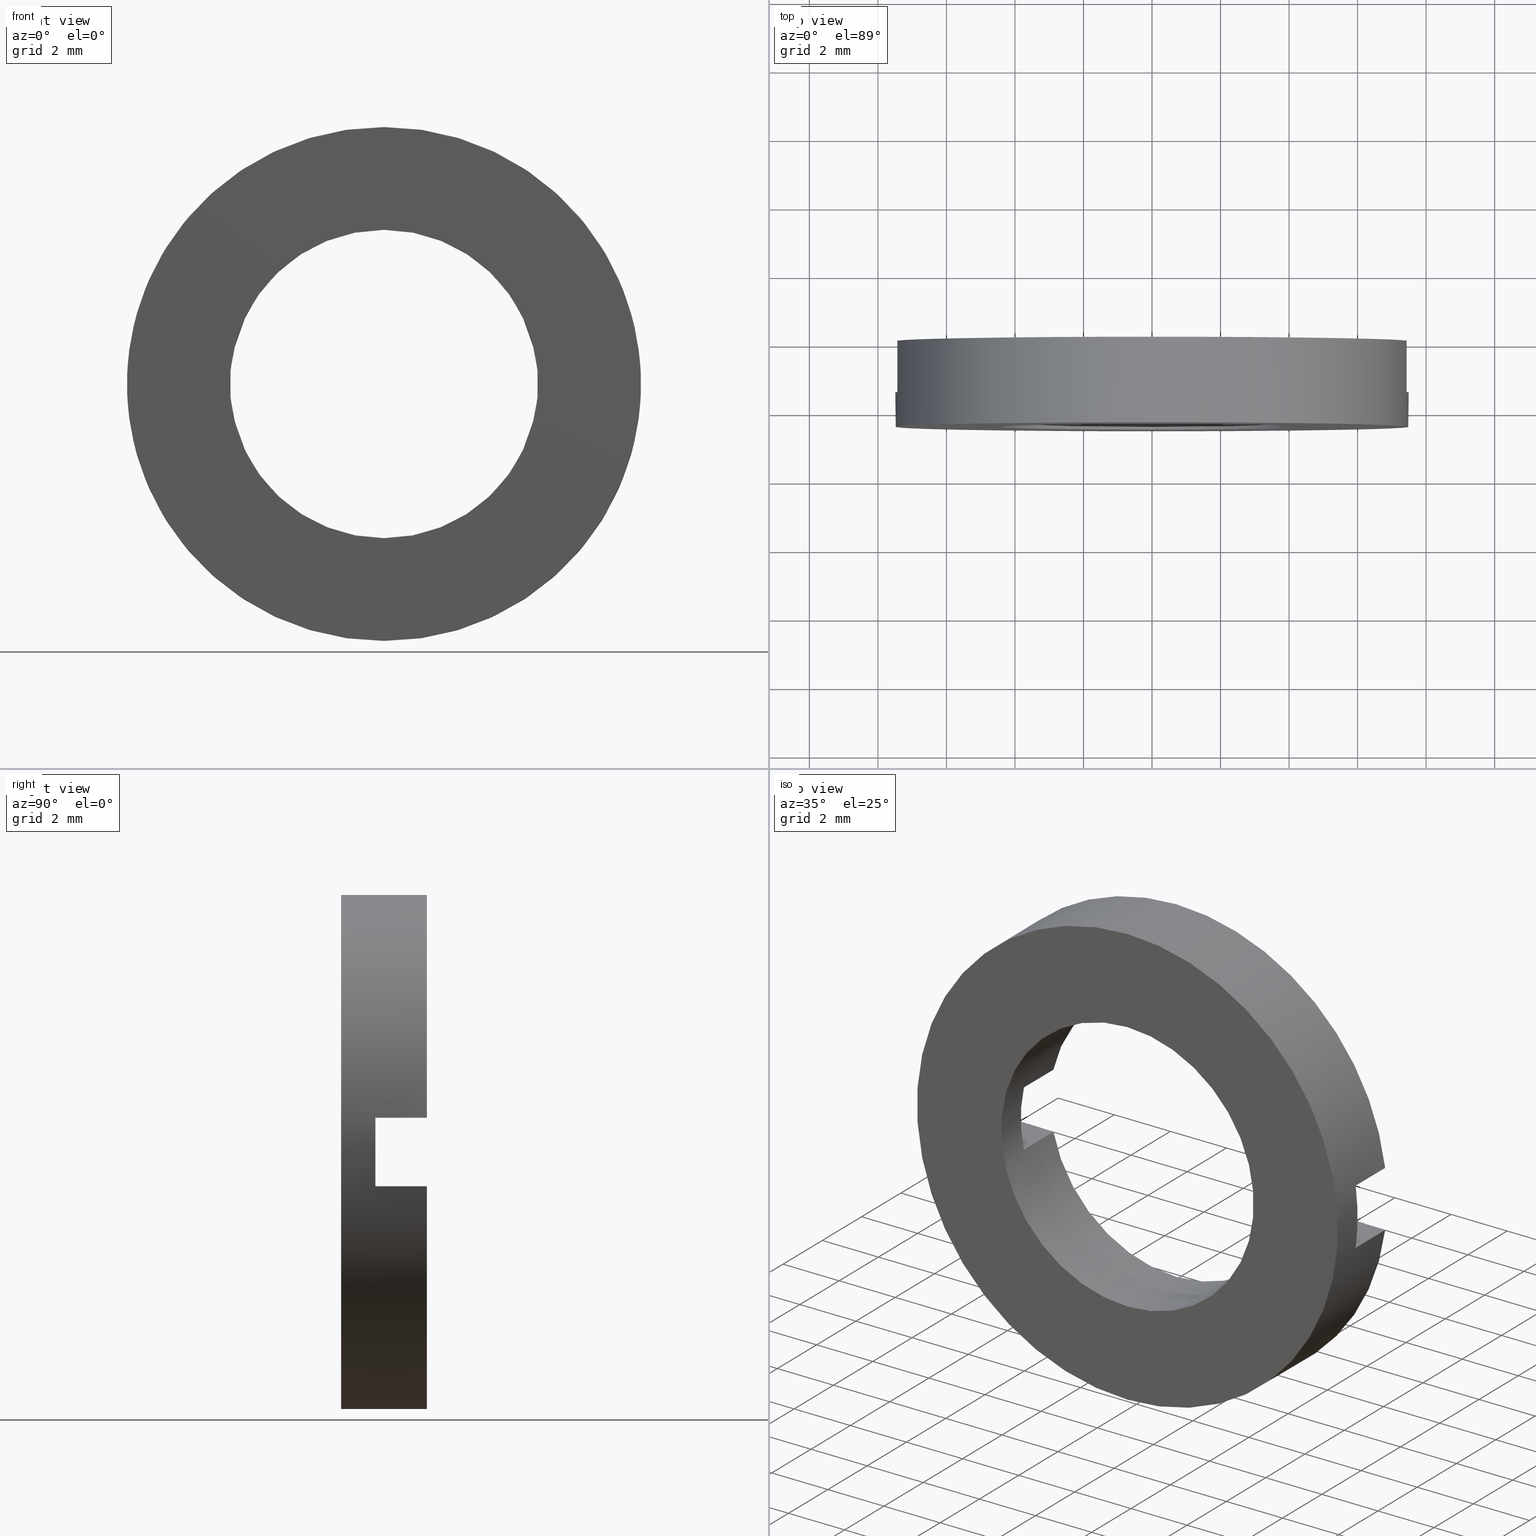
[diagram: canonical four-view strip — front | top / right | iso, engineering-drawing reading convention]
A machine part, canonical four-view strip (front | top / right | iso — engineering-drawing reading convention). The complete STEP part file that produces these views, byte-faithful:
ISO-10303-21;
HEADER;
FILE_DESCRIPTION (( 'STEP AP203' ),
    '1' );
FILE_NAME ('514015.STEP',
    '2019-09-25T08:50:07',
    ( '' ),
    ( '' ),
    'SwSTEP 2.0',
    'SolidWorks 2016',
    '' );
FILE_SCHEMA (( 'CONFIG_CONTROL_DESIGN' ));
ENDSEC;

DATA;
#1 = CARTESIAN_POINT ( 'NONE',  ( 7.433034373659259200, 56.26084262701361600, 1.000000000000000000 ) ) ;
#2 = VERTEX_POINT ( 'NONE', #114 ) ;
#3 = LOCAL_TIME ( 16, 50, 7.000000000000000000, #239 ) ;
#4 = SECURITY_CLASSIFICATION ( '', '', #118 ) ;
#5 = CARTESIAN_POINT ( 'NONE',  ( 4.387482193696067500, -1.964249787179434000, 0.9999999999999995600 ) ) ;
#6 = AXIS2_PLACEMENT_3D ( 'NONE', #446, #85, #314 ) ;
#7 = CARTESIAN_POINT ( 'NONE',  ( 0.0000000000000000000, -1.964249787179434000, 7.500000000000007100 ) ) ;
#8 = VERTEX_POINT ( 'NONE', #528 ) ;
#9 = CALENDAR_DATE ( 2019, 25, 9 ) ;
#10 = EDGE_CURVE ( 'NONE', #89, #326, #40, .T. ) ;
#11 = VERTEX_POINT ( 'NONE', #164 ) ;
#12 = FACE_OUTER_BOUND ( 'NONE', #540, .T. ) ;
#13 = ADVANCED_FACE ( 'NONE', ( #442 ), #574, .T. ) ;
#14 = CC_DESIGN_DATE_AND_TIME_ASSIGNMENT ( #412, #32, ( #4 ) ) ;
#15 = DIRECTION ( 'NONE',  ( 1.000000000000000000, 0.0000000000000000000, 0.0000000000000000000 ) ) ;
#16 = DIRECTION ( 'NONE',  ( -0.0000000000000000000, 1.000000000000000000, -0.0000000000000000000 ) ) ;
#17 = ORIENTED_EDGE ( 'NONE', *, *, #348, .F. ) ;
#18 = DIRECTION ( 'NONE',  ( -1.000000000000000000, -0.0000000000000000000, -0.0000000000000000000 ) ) ;
#19 = CC_DESIGN_PERSON_AND_ORGANIZATION_ASSIGNMENT ( #468, #216, ( #370 ) ) ;
#20 = CARTESIAN_POINT ( 'NONE',  ( 7.433034373659258300, -3.464249787179428400, -0.9999999999999995600 ) ) ;
#21 = CARTESIAN_POINT ( 'NONE',  ( 7.433034373659247700, -1.964249787179430900, -1.000000000000000000 ) ) ;
#22 = CARTESIAN_POINT ( 'NONE',  ( 7.433034373659258300, -3.464249787179428400, 0.9999999999999995600 ) ) ;
#23 = ORIENTED_EDGE ( 'NONE', *, *, #304, .F. ) ;
#24 = CALENDAR_DATE ( 2019, 25, 9 ) ;
#25 = DIRECTION ( 'NONE',  ( -0.0000000000000000000, 1.000000000000000000, -0.0000000000000000000 ) ) ;
#26 = FACE_OUTER_BOUND ( 'NONE', #134, .T. ) ;
#27 = APPROVAL_STATUS ( 'not_yet_approved' ) ;
#28 = EDGE_CURVE ( 'NONE', #11, #193, #283, .T. ) ;
#29 = DIRECTION ( 'NONE',  ( 1.000000000000000000, 0.0000000000000000000, 0.0000000000000000000 ) ) ;
#30 = DIRECTION ( 'NONE',  ( -0.0000000000000000000, 1.000000000000000000, -0.0000000000000000000 ) ) ;
#31 = EDGE_CURVE ( 'NONE', #481, #2, #159, .T. ) ;
#32 = DATE_TIME_ROLE ( 'classification_date' ) ;
#33 = APPROVAL_DATE_TIME ( #392, #280 ) ;
#34 = EDGE_LOOP ( 'NONE', ( #435, #162, #318, #334, #581, #429, #141, #82 ) ) ;
#35 = APPROVAL_PERSON_ORGANIZATION ( #473, #406, #168 ) ;
#36 = APPROVAL_ROLE ( '' ) ;
#37 = PRODUCT_RELATED_PRODUCT_CATEGORY ( 'detail', '', ( #514 ) ) ;
#38 = DIRECTION ( 'NONE',  ( 0.0000000000000000000, 0.0000000000000000000, 1.000000000000000000 ) ) ;
#39 = AXIS2_PLACEMENT_3D ( 'NONE', #365, #49, #279 ) ;
#40 = LINE ( 'NONE', #259, #414 ) ;
#41 = APPROVAL_PERSON_ORGANIZATION ( #284, #508, #36 ) ;
#42 = ORIENTED_EDGE ( 'NONE', *, *, #356, .T. ) ;
#43 = LINE ( 'NONE', #116, #241 ) ;
#44 = CC_DESIGN_DATE_AND_TIME_ASSIGNMENT ( #291, #71, ( #84 ) ) ;
#45 = DIRECTION ( 'NONE',  ( 0.0000000000000000000, -1.000000000000000000, 0.0000000000000000000 ) ) ;
#46 = ORIENTED_EDGE ( 'NONE', *, *, #61, .F. ) ;
#47 = FACE_OUTER_BOUND ( 'NONE', #34, .T. ) ;
#48 = PRODUCT_DEFINITION_FORMATION_WITH_SPECIFIED_SOURCE ( '�κ�', '', #514, .NOT_KNOWN. ) ;
#49 = DIRECTION ( 'NONE',  ( -0.0000000000000000000, 1.000000000000000000, -0.0000000000000000000 ) ) ;
#50 = COORDINATED_UNIVERSAL_TIME_OFFSET ( 8, 0, .AHEAD. ) ;
#51 = EDGE_LOOP ( 'NONE', ( #472, #267, #538, #462, #66, #351, #221, #186 ) ) ;
#52 = ADVANCED_FACE ( 'NONE', ( #105 ), #325, .F. ) ;
#53 = APPROVAL_DATE_TIME ( #300, #495 ) ;
#54 = ORIENTED_EDGE ( 'NONE', *, *, #453, .T. ) ;
#55 = FACE_OUTER_BOUND ( 'NONE', #550, .T. ) ;
#56 = DIRECTION ( 'NONE',  ( 0.0000000000000000000, 0.0000000000000000000, 1.000000000000000000 ) ) ;
#57 = AXIS2_PLACEMENT_3D ( 'NONE', #245, #563, #564 ) ;
#58 = CARTESIAN_POINT ( 'NONE',  ( -26.85254027261461800, -3.464249787179431100, -1.000000000000000000 ) ) ;
#59 = COORDINATED_UNIVERSAL_TIME_OFFSET ( 8, 0, .AHEAD. ) ;
#60 = LINE ( 'NONE', #69, #255 ) ;
#61 = EDGE_CURVE ( 'NONE', #193, #331, #136, .T. ) ;
#62 = VERTEX_POINT ( 'NONE', #22 ) ;
#63 = LINE ( 'NONE', #176, #201 ) ;
#64 = CARTESIAN_POINT ( 'NONE',  ( 5.510910596163098400E-016, -4.464249787179428900, -4.500000000000007100 ) ) ;
#65 = PERSON ( 'δָ��', 'δָ��', 'δָ��', ('δָ��'), ('δָ��'), ('δָ��') ) ;
#66 = ORIENTED_EDGE ( 'NONE', *, *, #465, .T. ) ;
#67 = LOCAL_TIME ( 16, 50, 7.000000000000000000, #511 ) ;
#68 = ORIENTED_EDGE ( 'NONE', *, *, #100, .T. ) ;
#69 = CARTESIAN_POINT ( 'NONE',  ( -7.433034373659259200, 56.26084262701361600, 1.000000000000000000 ) ) ;
#70 = AXIS2_PLACEMENT_3D ( 'NONE', #534, #220, #266 ) ;
#71 = DATE_TIME_ROLE ( 'creation_date' ) ;
#72 = EDGE_CURVE ( 'NONE', #326, #416, #327, .T. ) ;
#73 = APPROVAL_STATUS ( 'not_yet_approved' ) ;
#74 = APPLICATION_PROTOCOL_DEFINITION ( 'international standard', 'config_control_design', 1994, #171 ) ;
#75 = LINE ( 'NONE', #97, #333 ) ;
#76 = ORIENTED_EDGE ( 'NONE', *, *, #382, .T. ) ;
#77 = VECTOR ( 'NONE', #242, 1000.000000000000000 ) ;
#78 = APPROVAL_ROLE ( '' ) ;
#79 = EDGE_CURVE ( 'NONE', #457, #8, #589, .T. ) ;
#80 = LOCAL_TIME ( 16, 50, 7.000000000000000000, #282 ) ;
#81 = ORIENTED_EDGE ( 'NONE', *, *, #86, .F. ) ;
#82 = ORIENTED_EDGE ( 'NONE', *, *, #179, .T. ) ;
#83 = CARTESIAN_POINT ( 'NONE',  ( 0.0000000000000000000, -1.964249787179434000, 4.500000000000007100 ) ) ;
#84 = PRODUCT_DEFINITION ( 'δ֪', '', #400, #236 ) ;
#85 = DIRECTION ( 'NONE',  ( -0.0000000000000000000, 1.000000000000000000, -0.0000000000000000000 ) ) ;
#86 = EDGE_CURVE ( 'NONE', #8, #11, #270, .T. ) ;
#87 = DIRECTION ( 'NONE',  ( 1.000000000000000000, 0.0000000000000000000, 0.0000000000000000000 ) ) ;
#88 = CIRCLE ( 'NONE', #196, 7.500000000000007100 ) ;
#89 = VERTEX_POINT ( 'NONE', #479 ) ;
#90 = LINE ( 'NONE', #1, #213 ) ;
#91 = EDGE_CURVE ( 'NONE', #8, #455, #527, .T. ) ;
#92 = DIRECTION ( 'NONE',  ( -0.0000000000000000000, 1.000000000000000000, -0.0000000000000000000 ) ) ;
#93 = ADVANCED_FACE ( 'NONE', ( #123 ), #172, .F. ) ;
#94 = CALENDAR_DATE ( 2019, 25, 9 ) ;
#95 = ORIENTED_EDGE ( 'NONE', *, *, #237, .F. ) ;
#96 = CYLINDRICAL_SURFACE ( 'NONE', #343, 7.500000000000007100 ) ;
#97 = CARTESIAN_POINT ( 'NONE',  ( -7.433034373659259200, 56.26084262701361600, -1.000000000000000000 ) ) ;
#98 = VERTEX_POINT ( 'NONE', #484 ) ;
#99 = CARTESIAN_POINT ( 'NONE',  ( 7.433034373659247700, -1.964249787179430900, 1.000000000000000000 ) ) ;
#100 = EDGE_CURVE ( 'NONE', #319, #457, #188, .T. ) ;
#101 = CARTESIAN_POINT ( 'NONE',  ( 0.0000000000000000000, -4.464249787179428900, 0.0000000000000000000 ) ) ;
#102 = ORIENTED_EDGE ( 'NONE', *, *, #28, .T. ) ;
#103 = LOCAL_TIME ( 16, 50, 7.000000000000000000, #194 ) ;
#104 = ORIENTED_EDGE ( 'NONE', *, *, #525, .T. ) ;
#105 = FACE_OUTER_BOUND ( 'NONE', #226, .T. ) ;
#106 = CARTESIAN_POINT ( 'NONE',  ( 0.0000000000000000000, -3.464249787179431100, 0.0000000000000000000 ) ) ;
#107 = CARTESIAN_POINT ( 'NONE',  ( 4.387482193696068400, 56.26084262701361600, 1.000000000000000000 ) ) ;
#108 = CC_DESIGN_APPROVAL ( #173, ( #48 ) ) ;
#109 = CARTESIAN_POINT ( 'NONE',  ( -26.85254027261461800, -3.464249787179431100, -1.000000000000000000 ) ) ;
#110 = EDGE_CURVE ( 'NONE', #285, #455, #63, .T. ) ;
#111 = EDGE_LOOP ( 'NONE', ( #253, #588, #148, #54, #17, #232, #586, #240 ) ) ;
#112 = CLOSED_SHELL ( 'NONE', ( #52, #13, #93, #551, #197, #276, #324, #368, #500, #187, #492, #458, #493 ) ) ;
#113 = DIRECTION ( 'NONE',  ( 0.0000000000000000000, 0.0000000000000000000, -1.000000000000000000 ) ) ;
#114 = CARTESIAN_POINT ( 'NONE',  ( 9.184850993605157800E-016, -1.964249787179434000, -7.500000000000007100 ) ) ;
#115 = EDGE_CURVE ( 'NONE', #395, #384, #309, .T. ) ;
#116 = CARTESIAN_POINT ( 'NONE',  ( -26.85254027261461800, -1.964249787179430900, 1.000000000000000000 ) ) ;
#117 = CC_DESIGN_PERSON_AND_ORGANIZATION_ASSIGNMENT ( #401, #344, ( #400 ) ) ;
#118 = SECURITY_CLASSIFICATION_LEVEL ( 'unclassified' ) ;
#119 = PERSON_AND_ORGANIZATION ( #65, #263 ) ;
#120 = ORIENTED_EDGE ( 'NONE', *, *, #287, .F. ) ;
#121 = VECTOR ( 'NONE', #512, 1000.000000000000000 ) ;
#122 = ORIENTED_EDGE ( 'NONE', *, *, #237, .T. ) ;
#123 = FACE_OUTER_BOUND ( 'NONE', #254, .T. ) ;
#124 = AXIS2_PLACEMENT_3D ( 'NONE', #498, #501, #558 ) ;
#125 = DIRECTION ( 'NONE',  ( 0.0000000000000000000, 0.0000000000000000000, 1.000000000000000000 ) ) ;
#126 = DIRECTION ( 'NONE',  ( -0.0000000000000000000, 1.000000000000000000, -0.0000000000000000000 ) ) ;
#127 = APPLICATION_PROTOCOL_DEFINITION ( 'international standard', 'config_control_design', 1994, #476 ) ;
#128 =( NAMED_UNIT ( * ) SI_UNIT ( $, .STERADIAN. ) SOLID_ANGLE_UNIT ( ) );
#129 = ORIENTED_EDGE ( 'NONE', *, *, #199, .T. ) ;
#130 = MANIFOLD_SOLID_BREP ( '�г�-����1', #112 ) ;
#131 = CARTESIAN_POINT ( 'NONE',  ( 0.0000000000000000000, -1.964249787179434000, 0.0000000000000000000 ) ) ;
#132 = AXIS2_PLACEMENT_3D ( 'NONE', #451, #140, #452 ) ;
#133 = DIRECTION ( 'NONE',  ( 0.0000000000000000000, 0.0000000000000000000, 1.000000000000000000 ) ) ;
#134 = EDGE_LOOP ( 'NONE', ( #358, #195, #104, #269 ) ) ;
#135 = EDGE_LOOP ( 'NONE', ( #402, #214, #474, #95, #166, #23 ) ) ;
#136 = CIRCLE ( 'NONE', #557, 4.500000000000007100 ) ;
#137 = DIRECTION ( 'NONE',  ( 0.0000000000000000000, -0.0000000000000000000, -1.000000000000000000 ) ) ;
#138 = DIRECTION ( 'NONE',  ( -0.0000000000000000000, 1.000000000000000000, -0.0000000000000000000 ) ) ;
#139 = SECURITY_CLASSIFICATION ( '', '', #523 ) ;
#140 = DIRECTION ( 'NONE',  ( -0.0000000000000000000, 1.000000000000000000, -0.0000000000000000000 ) ) ;
#141 = ORIENTED_EDGE ( 'NONE', *, *, #323, .T. ) ;
#142 = AXIS2_PLACEMENT_3D ( 'NONE', #410, #45, #137 ) ;
#143 = CARTESIAN_POINT ( 'NONE',  ( 0.0000000000000000000, -3.464249787179428400, 0.0000000000000000000 ) ) ;
#144 = CARTESIAN_POINT ( 'NONE',  ( 0.0000000000000000000, -1.964249787179434000, 0.0000000000000000000 ) ) ;
#145 = ORIENTED_EDGE ( 'NONE', *, *, #459, .F. ) ;
#146 = LINE ( 'NONE', #337, #582 ) ;
#147 = CARTESIAN_POINT ( 'NONE',  ( -26.85254027261461800, -1.964249787179430900, 1.000000000000000000 ) ) ;
#148 = ORIENTED_EDGE ( 'NONE', *, *, #31, .F. ) ;
#149 = LINE ( 'NONE', #147, #422 ) ;
#150 = DIRECTION ( 'NONE',  ( 0.0000000000000000000, 1.000000000000000000, 0.0000000000000000000 ) ) ;
#151 = AXIS2_PLACEMENT_3D ( 'NONE', #131, #536, #38 ) ;
#152 = ORIENTED_EDGE ( 'NONE', *, *, #434, .T. ) ;
#153 = LINE ( 'NONE', #107, #489 ) ;
#154 = CARTESIAN_POINT ( 'NONE',  ( 0.0000000000000000000, 56.26084262701361600, 0.0000000000000000000 ) ) ;
#155 = DIRECTION ( 'NONE',  ( -1.000000000000000000, -0.0000000000000000000, -0.0000000000000000000 ) ) ;
#156 = CARTESIAN_POINT ( 'NONE',  ( 0.0000000000000000000, 56.26084262701361600, 0.0000000000000000000 ) ) ;
#157 = CARTESIAN_POINT ( 'NONE',  ( 9.184850993605157800E-016, -4.464249787179428900, -7.500000000000007100 ) ) ;
#158 = AXIS2_PLACEMENT_3D ( 'NONE', #101, #419, #56 ) ;
#159 = CIRCLE ( 'NONE', #424, 7.500000000000007100 ) ;
#160 = PERSON_AND_ORGANIZATION ( #65, #263 ) ;
#161 = CARTESIAN_POINT ( 'NONE',  ( 0.0000000000000000000, -1.964249787179434000, 0.0000000000000000000 ) ) ;
#162 = ORIENTED_EDGE ( 'NONE', *, *, #382, .F. ) ;
#163 = LINE ( 'NONE', #470, #229 ) ;
#164 = CARTESIAN_POINT ( 'NONE',  ( -4.387482193696067500, -1.964249787179434000, 0.9999999999999995600 ) ) ;
#165 = CALENDAR_DATE ( 2019, 25, 9 ) ;
#166 = ORIENTED_EDGE ( 'NONE', *, *, #179, .F. ) ;
#167 = VECTOR ( 'NONE', #271, 1000.000000000000000 ) ;
#168 = APPROVAL_ROLE ( '' ) ;
#169 = CC_DESIGN_PERSON_AND_ORGANIZATION_ASSIGNMENT ( #378, #575, ( #400 ) ) ;
#170 = CARTESIAN_POINT ( 'NONE',  ( -26.85254027261461800, -3.464249787179431100, 1.000000000000000000 ) ) ;
#171 = APPLICATION_CONTEXT ( 'configuration controlled 3d designs of mechanical parts and assemblies' ) ;
#172 = PLANE ( 'NONE',  #445 ) ;
#173 = APPROVAL ( #218, 'δָ��' ) ;
#174 = CARTESIAN_POINT ( 'NONE',  ( 0.0000000000000000000, -3.464249787179428400, 0.0000000000000000000 ) ) ;
#175 = CALENDAR_DATE ( 2019, 25, 9 ) ;
#176 = CARTESIAN_POINT ( 'NONE',  ( -4.387482193696068400, 56.26084262701361600, -1.000000000000000000 ) ) ;
#177 = ORIENTED_EDGE ( 'NONE', *, *, #243, .F. ) ;
#178 = CALENDAR_DATE ( 2019, 25, 9 ) ;
#179 = EDGE_CURVE ( 'NONE', #444, #98, #571, .T. ) ;
#180 = ORIENTED_EDGE ( 'NONE', *, *, #115, .T. ) ;
#181 = LINE ( 'NONE', #58, #409 ) ;
#182 = DIRECTION ( 'NONE',  ( -1.000000000000000000, -0.0000000000000000000, -0.0000000000000000000 ) ) ;
#183 = AXIS2_PLACEMENT_3D ( 'NONE', #144, #198, #506 ) ;
#184 = CARTESIAN_POINT ( 'NONE',  ( 0.0000000000000000000, -1.964249787179434000, 0.0000000000000000000 ) ) ;
#185 = FACE_OUTER_BOUND ( 'NONE', #379, .T. ) ;
#186 = ORIENTED_EDGE ( 'NONE', *, *, #362, .F. ) ;
#187 = ADVANCED_FACE ( 'NONE', ( #293 ), #584, .F. ) ;
#188 = CIRCLE ( 'NONE', #537, 7.500000000000007100 ) ;
#189 = DIRECTION ( 'NONE',  ( -0.0000000000000000000, 1.000000000000000000, -0.0000000000000000000 ) ) ;
#190 = CC_DESIGN_DATE_AND_TIME_ASSIGNMENT ( #539, #313, ( #139 ) ) ;
#191 = APPROVAL_PERSON_ORGANIZATION ( #549, #517, #217 ) ;
#192 = CARTESIAN_POINT ( 'NONE',  ( 5.510910596163098400E-016, 56.26084262701361600, -4.500000000000007100 ) ) ;
#193 = VERTEX_POINT ( 'NONE', #83 ) ;
#194 = COORDINATED_UNIVERSAL_TIME_OFFSET ( 8, 0, .AHEAD. ) ;
#195 = ORIENTED_EDGE ( 'NONE', *, *, #110, .F. ) ;
#196 = AXIS2_PLACEMENT_3D ( 'NONE', #289, #235, #553 ) ;
#197 = ADVANCED_FACE ( 'NONE', ( #548 ), #361, .F. ) ;
#198 = DIRECTION ( 'NONE',  ( -0.0000000000000000000, 1.000000000000000000, -0.0000000000000000000 ) ) ;
#199 = EDGE_CURVE ( 'NONE', #384, #62, #448, .T. ) ;
#200 = FACE_BOUND ( 'NONE', #338, .T. ) ;
#201 = VECTOR ( 'NONE', #261, 1000.000000000000000 ) ;
#202 = DIRECTION ( 'NONE',  ( 0.0000000000000000000, -1.000000000000000000, 0.0000000000000000000 ) ) ;
#203 = CC_DESIGN_PERSON_AND_ORGANIZATION_ASSIGNMENT ( #219, #342, ( #84 ) ) ;
#204 = DIRECTION ( 'NONE',  ( 1.000000000000000000, 0.0000000000000000000, 0.0000000000000000000 ) ) ;
#205 = CALENDAR_DATE ( 2019, 25, 9 ) ;
#206 = AXIS2_PLACEMENT_3D ( 'NONE', #106, #150, #288 ) ;
#207 = APPROVAL_DATE_TIME ( #441, #508 ) ;
#208 = DIRECTION ( 'NONE',  ( 0.0000000000000000000, -1.000000000000000000, 0.0000000000000000000 ) ) ;
#209 = DIRECTION ( 'NONE',  ( -0.0000000000000000000, 1.000000000000000000, -0.0000000000000000000 ) ) ;
#210 = CARTESIAN_POINT ( 'NONE',  ( -26.85254027261461800, -3.464249787179431100, 1.000000000000000000 ) ) ;
#211 = DIRECTION ( 'NONE',  ( 1.000000000000000000, 0.0000000000000000000, 0.0000000000000000000 ) ) ;
#212 = AXIS2_PLACEMENT_3D ( 'NONE', #461, #336, #366 ) ;
#213 = VECTOR ( 'NONE', #189, 1000.000000000000000 ) ;
#214 = ORIENTED_EDGE ( 'NONE', *, *, #362, .T. ) ;
#215 = CIRCLE ( 'NONE', #391, 7.500000000000007100 ) ;
#216 = PERSON_AND_ORGANIZATION_ROLE ( 'creator' ) ;
#217 = APPROVAL_ROLE ( '' ) ;
#218 = APPROVAL_STATUS ( 'not_yet_approved' ) ;
#219 = PERSON_AND_ORGANIZATION ( #65, #263 ) ;
#220 = DIRECTION ( 'NONE',  ( -0.0000000000000000000, -1.000000000000000000, -0.0000000000000000000 ) ) ;
#221 = ORIENTED_EDGE ( 'NONE', *, *, #386, .T. ) ;
#222 = PERSON_AND_ORGANIZATION ( #65, #263 ) ;
#223 = CC_DESIGN_PERSON_AND_ORGANIZATION_ASSIGNMENT ( #222, #524, ( #48 ) ) ;
#224 = ORIENTED_EDGE ( 'NONE', *, *, #304, .T. ) ;
#225 = DIRECTION ( 'NONE',  ( -0.0000000000000000000, 1.000000000000000000, -0.0000000000000000000 ) ) ;
#226 = EDGE_LOOP ( 'NONE', ( #120, #360, #122, #494, #404, #421, #102, #177 ) ) ;
#227 = PERSON_AND_ORGANIZATION ( #65, #263 ) ;
#228 = EDGE_CURVE ( 'NONE', #345, #326, #215, .T. ) ;
#229 = VECTOR ( 'NONE', #251, 1000.000000000000000 ) ;
#230 = CC_DESIGN_APPROVAL ( #517, ( #4 ) ) ;
#231 = CARTESIAN_POINT ( 'NONE',  ( -4.387482193696067500, -1.964249787179434000, -0.9999999999999995600 ) ) ;
#232 = ORIENTED_EDGE ( 'NONE', *, *, #274, .T. ) ;
#233 = DIRECTION ( 'NONE',  ( 0.0000000000000000000, 0.0000000000000000000, 1.000000000000000000 ) ) ;
#234 = CC_DESIGN_PERSON_AND_ORGANIZATION_ASSIGNMENT ( #359, #264, ( #246 ) ) ;
#235 = DIRECTION ( 'NONE',  ( -0.0000000000000000000, 1.000000000000000000, -0.0000000000000000000 ) ) ;
#236 = DESIGN_CONTEXT ( 'detailed design', #315, 'design' ) ;
#237 = EDGE_CURVE ( 'NONE', #98, #285, #303, .T. ) ;
#238 = ORIENTED_EDGE ( 'NONE', *, *, #72, .T. ) ;
#239 = COORDINATED_UNIVERSAL_TIME_OFFSET ( 8, 0, .AHEAD. ) ;
#240 = ORIENTED_EDGE ( 'NONE', *, *, #10, .F. ) ;
#241 = VECTOR ( 'NONE', #522, 1000.000000000000000 ) ;
#242 = DIRECTION ( 'NONE',  ( -0.0000000000000000000, 1.000000000000000000, -0.0000000000000000000 ) ) ;
#243 = EDGE_CURVE ( 'NONE', #554, #193, #559, .T. ) ;
#244 = CARTESIAN_POINT ( 'NONE',  ( -7.433034373659268100, -1.964249787179430900, 1.000000000000000000 ) ) ;
#245 = CARTESIAN_POINT ( 'NONE',  ( 0.0000000000000000000, -3.464249787179431100, 0.0000000000000000000 ) ) ;
#246 = PRODUCT ( '514015', '514015', '', ( #580 ) ) ;
#247 = ORIENTED_EDGE ( 'NONE', *, *, #332, .T. ) ;
#248 = CC_DESIGN_APPROVAL ( #495, ( #139 ) ) ;
#249 = PLANE ( 'NONE',  #57 ) ;
#250 = DIRECTION ( 'NONE',  ( 0.0000000000000000000, 0.0000000000000000000, 1.000000000000000000 ) ) ;
#251 = DIRECTION ( 'NONE',  ( 0.0000000000000000000, -1.000000000000000000, 0.0000000000000000000 ) ) ;
#252 = AXIS2_PLACEMENT_3D ( 'NONE', #390, #125, #29 ) ;
#253 = ORIENTED_EDGE ( 'NONE', *, *, #312, .T. ) ;
#254 = EDGE_LOOP ( 'NONE', ( #292, #238, #504, #46, #275, #302 ) ) ;
#255 = VECTOR ( 'NONE', #202, 1000.000000000000000 ) ;
#256 = APPROVAL_STATUS ( 'not_yet_approved' ) ;
#257 = DIRECTION ( 'NONE',  ( 0.0000000000000000000, 0.0000000000000000000, 1.000000000000000000 ) ) ;
#258 = APPLICATION_PROTOCOL_DEFINITION ( 'international standard', 'config_control_design', 1994, #315 ) ;
#259 = CARTESIAN_POINT ( 'NONE',  ( 0.0000000000000000000, 56.26084262701361600, 7.500000000000007100 ) ) ;
#260 = PRODUCT_RELATED_PRODUCT_CATEGORY ( 'detail', '', ( #246 ) ) ;
#261 = DIRECTION ( 'NONE',  ( 0.0000000000000000000, -1.000000000000000000, 0.0000000000000000000 ) ) ;
#262 = ORIENTED_EDGE ( 'NONE', *, *, #376, .F. ) ;
#263 = ORGANIZATION ( 'δָ��', 'δָ��', '' ) ;
#264 = PERSON_AND_ORGANIZATION_ROLE ( 'design_owner' ) ;
#265 = DIRECTION ( 'NONE',  ( 0.0000000000000000000, 0.0000000000000000000, 1.000000000000000000 ) ) ;
#266 = DIRECTION ( 'NONE',  ( 8.881784197001253900E-015, 0.0000000000000000000, 1.000000000000000000 ) ) ;
#267 = ORIENTED_EDGE ( 'NONE', *, *, #376, .T. ) ;
#268 = LOCAL_TIME ( 16, 50, 7.000000000000000000, #385 ) ;
#269 = ORIENTED_EDGE ( 'NONE', *, *, #386, .F. ) ;
#270 = LINE ( 'NONE', #353, #167 ) ;
#271 = DIRECTION ( 'NONE',  ( -0.0000000000000000000, 1.000000000000000000, -0.0000000000000000000 ) ) ;
#272 =( GEOMETRIC_REPRESENTATION_CONTEXT ( 3 ) GLOBAL_UNCERTAINTY_ASSIGNED_CONTEXT ( ( #478 ) ) GLOBAL_UNIT_ASSIGNED_CONTEXT ( ( #438, #398, #128 ) ) REPRESENTATION_CONTEXT ( 'NONE', 'WORKASPACE' ) );
#273 = PRODUCT_DEFINITION_SHAPE ( 'NONE', 'NONE',  #84 ) ;
#274 = EDGE_CURVE ( 'NONE', #62, #416, #90, .T. ) ;
#275 = ORIENTED_EDGE ( 'NONE', *, *, #28, .F. ) ;
#276 = ADVANCED_FACE ( 'NONE', ( #47 ), #417, .F. ) ;
#277 = CALENDAR_DATE ( 2019, 25, 9 ) ;
#278 = CARTESIAN_POINT ( 'NONE',  ( 0.0000000000000000000, 56.26084262701361600, 4.500000000000007100 ) ) ;
#279 = DIRECTION ( 'NONE',  ( 0.0000000000000000000, 0.0000000000000000000, 1.000000000000000000 ) ) ;
#280 = APPROVAL ( #27, 'δָ��' ) ;
#281 = DIRECTION ( 'NONE',  ( -0.0000000000000000000, 1.000000000000000000, -0.0000000000000000000 ) ) ;
#282 = COORDINATED_UNIVERSAL_TIME_OFFSET ( 8, 0, .AHEAD. ) ;
#283 = CIRCLE ( 'NONE', #413, 4.500000000000007100 ) ;
#284 = PERSON_AND_ORGANIZATION ( #65, #263 ) ;
#285 = VERTEX_POINT ( 'NONE', #231 ) ;
#286 = CIRCLE ( 'NONE', #212, 4.500000000000007100 ) ;
#287 = EDGE_CURVE ( 'NONE', #519, #554, #405, .T. ) ;
#288 = DIRECTION ( 'NONE',  ( 0.0000000000000000000, -0.0000000000000000000, 1.000000000000000000 ) ) ;
#289 = CARTESIAN_POINT ( 'NONE',  ( 0.0000000000000000000, -4.464249787179428900, 0.0000000000000000000 ) ) ;
#290 = PLANE ( 'NONE',  #124 ) ;
#291 = DATE_AND_TIME ( #471, #486 ) ;
#292 = ORIENTED_EDGE ( 'NONE', *, *, #228, .T. ) ;
#293 = FACE_OUTER_BOUND ( 'NONE', #299, .T. ) ;
#294 = PLANE ( 'NONE',  #579 ) ;
#295 = CC_DESIGN_PERSON_AND_ORGANIZATION_ASSIGNMENT ( #352, #532, ( #48 ) ) ;
#296 = CARTESIAN_POINT ( 'NONE',  ( 4.387482193696067500, -1.964249787179434000, -0.9999999999999995600 ) ) ;
#297 = CARTESIAN_POINT ( 'NONE',  ( -26.85254027261461800, -3.464249787179431100, -1.000000000000000000 ) ) ;
#298 = AXIS2_PLACEMENT_3D ( 'NONE', #143, #464, #418 ) ;
#299 = EDGE_LOOP ( 'NONE', ( #371, #502, #42, #490 ) ) ;
#300 = DATE_AND_TIME ( #277, #415 ) ;
#301 = CARTESIAN_POINT ( 'NONE',  ( 0.0000000000000000000, -1.964249787179434000, 0.0000000000000000000 ) ) ;
#302 = ORIENTED_EDGE ( 'NONE', *, *, #434, .F. ) ;
#303 = CIRCLE ( 'NONE', #480, 4.500000000000007100 ) ;
#304 = EDGE_CURVE ( 'NONE', #481, #444, #347, .T. ) ;
#305 = CARTESIAN_POINT ( 'NONE',  ( -7.433034373659258300, -3.464249787179428400, 0.9999999999999995600 ) ) ;
#306 = PERSON_AND_ORGANIZATION_ROLE ( 'classification_officer' ) ;
#307 = DIRECTION ( 'NONE',  ( -0.0000000000000000000, 1.000000000000000000, -0.0000000000000000000 ) ) ;
#308 = AXIS2_PLACEMENT_3D ( 'NONE', #569, #209, #257 ) ;
#309 = CIRCLE ( 'NONE', #70, 4.500000000000007100 ) ;
#310 = CIRCLE ( 'NONE', #298, 7.500000000000007100 ) ;
#311 = PERSON_AND_ORGANIZATION_ROLE ( 'classification_officer' ) ;
#312 = EDGE_CURVE ( 'NONE', #89, #427, #88, .T. ) ;
#313 = DATE_TIME_ROLE ( 'classification_date' ) ;
#314 = DIRECTION ( 'NONE',  ( 0.0000000000000000000, 0.0000000000000000000, 1.000000000000000000 ) ) ;
#315 = APPLICATION_CONTEXT ( 'configuration controlled 3d designs of mechanical parts and assemblies' ) ;
#316 = APPROVAL_DATE_TIME ( #426, #517 ) ;
#317 = CC_DESIGN_PERSON_AND_ORGANIZATION_ASSIGNMENT ( #535, #311, ( #4 ) ) ;
#318 = ORIENTED_EDGE ( 'NONE', *, *, #243, .T. ) ;
#319 = VERTEX_POINT ( 'NONE', #496 ) ;
#320 = DIRECTION ( 'NONE',  ( 0.0000000000000000000, -1.000000000000000000, 0.0000000000000000000 ) ) ;
#321 = CC_DESIGN_PERSON_AND_ORGANIZATION_ASSIGNMENT ( #227, #530, ( #514 ) ) ;
#322 = DIRECTION ( 'NONE',  ( -0.0000000000000000000, 1.000000000000000000, -0.0000000000000000000 ) ) ;
#323 = EDGE_CURVE ( 'NONE', #395, #444, #529, .T. ) ;
#324 = ADVANCED_FACE ( 'NONE', ( #449, #200 ), #290, .F. ) ;
#325 = CYLINDRICAL_SURFACE ( 'NONE', #499, 4.500000000000007100 ) ;
#326 = VERTEX_POINT ( 'NONE', #7 ) ;
#327 = CIRCLE ( 'NONE', #6, 7.500000000000007100 ) ;
#328 = CARTESIAN_POINT ( 'NONE',  ( -26.85254027261461800, -1.964249787179430900, -1.000000000000000000 ) ) ;
#329 = EDGE_CURVE ( 'NONE', #519, #98, #436, .T. ) ;
#330 = PERSON_AND_ORGANIZATION ( #65, #263 ) ;
#331 = VERTEX_POINT ( 'NONE', #5 ) ;
#332 = EDGE_CURVE ( 'NONE', #455, #319, #181, .T. ) ;
#333 = VECTOR ( 'NONE', #16, 1000.000000000000000 ) ;
#334 = ORIENTED_EDGE ( 'NONE', *, *, #61, .T. ) ;
#335 = VECTOR ( 'NONE', #138, 1000.000000000000000 ) ;
#336 = DIRECTION ( 'NONE',  ( -0.0000000000000000000, 1.000000000000000000, -0.0000000000000000000 ) ) ;
#337 = CARTESIAN_POINT ( 'NONE',  ( -26.85254027261461800, -1.964249787179430900, -1.000000000000000000 ) ) ;
#338 = EDGE_LOOP ( 'NONE', ( #76, #583 ) ) ;
#339 = LINE ( 'NONE', #425, #121 ) ;
#340 = DIRECTION ( 'NONE',  ( 0.0000000000000000000, 0.0000000000000000000, -1.000000000000000000 ) ) ;
#341 = PLANE ( 'NONE',  #513 ) ;
#342 = PERSON_AND_ORGANIZATION_ROLE ( 'creator' ) ;
#343 = AXIS2_PLACEMENT_3D ( 'NONE', #154, #515, #381 ) ;
#344 = PERSON_AND_ORGANIZATION_ROLE ( 'design_supplier' ) ;
#345 = VERTEX_POINT ( 'NONE', #244 ) ;
#346 = VERTEX_POINT ( 'NONE', #562 ) ;
#347 = LINE ( 'NONE', #328, #463 ) ;
#348 = EDGE_CURVE ( 'NONE', #62, #510, #310, .T. ) ;
#349 = CARTESIAN_POINT ( 'NONE',  ( 0.0000000000000000000, -4.464249787179428900, 4.500000000000007100 ) ) ;
#350 = APPROVAL_ROLE ( '' ) ;
#351 = ORIENTED_EDGE ( 'NONE', *, *, #100, .F. ) ;
#352 = PERSON_AND_ORGANIZATION ( #65, #263 ) ;
#353 = CARTESIAN_POINT ( 'NONE',  ( -4.387482193696068400, 56.26084262701361600, 1.000000000000000000 ) ) ;
#354 = AXIS2_PLACEMENT_3D ( 'NONE', #542, #357, #394 ) ;
#355 = DIRECTION ( 'NONE',  ( 0.0000000000000000000, -0.0000000000000000000, -1.000000000000000000 ) ) ;
#356 = EDGE_CURVE ( 'NONE', #331, #416, #149, .T. ) ;
#357 = DIRECTION ( 'NONE',  ( -0.0000000000000000000, 0.0000000000000000000, 1.000000000000000000 ) ) ;
#358 = ORIENTED_EDGE ( 'NONE', *, *, #332, .F. ) ;
#359 = PERSON_AND_ORGANIZATION ( #65, #263 ) ;
#360 = ORIENTED_EDGE ( 'NONE', *, *, #329, .T. ) ;
#361 = PLANE ( 'NONE',  #142 ) ;
#362 = EDGE_CURVE ( 'NONE', #2, #346, #521, .T. ) ;
#363 = AXIS2_PLACEMENT_3D ( 'NONE', #431, #477, #211 ) ;
#364 = ORIENTED_EDGE ( 'NONE', *, *, #79, .F. ) ;
#365 = CARTESIAN_POINT ( 'NONE',  ( 0.0000000000000000000, -4.464249787179428900, 0.0000000000000000000 ) ) ;
#366 = DIRECTION ( 'NONE',  ( 0.0000000000000000000, 0.0000000000000000000, 1.000000000000000000 ) ) ;
#367 = CARTESIAN_POINT ( 'NONE',  ( 4.387482193696067500, -3.464249787179428400, 0.9999999999999995600 ) ) ;
#368 = ADVANCED_FACE ( 'NONE', ( #55 ), #556, .T. ) ;
#369 = CARTESIAN_POINT ( 'NONE',  ( 4.387482193696068400, 56.26084262701361600, -1.000000000000000000 ) ) ;
#370 = PRODUCT_DEFINITION ( 'δ֪', '', #48, #485 ) ;
#371 = ORIENTED_EDGE ( 'NONE', *, *, #199, .F. ) ;
#372 = FACE_OUTER_BOUND ( 'NONE', #51, .T. ) ;
#373 = EDGE_LOOP ( 'NONE', ( #224, #560, #145, #387 ) ) ;
#374 = FACE_OUTER_BOUND ( 'NONE', #373, .T. ) ;
#375 = DIRECTION ( 'NONE',  ( -1.000000000000000000, -0.0000000000000000000, -0.0000000000000000000 ) ) ;
#376 = EDGE_CURVE ( 'NONE', #427, #89, #433, .T. ) ;
#377 = DIRECTION ( 'NONE',  ( -1.000000000000000000, 0.0000000000000000000, -0.0000000000000000000 ) ) ;
#378 = PERSON_AND_ORGANIZATION ( #65, #263 ) ;
#379 = EDGE_LOOP ( 'NONE', ( #152, #81, #364, #408 ) ) ;
#380 = PERSON_AND_ORGANIZATION ( #65, #263 ) ;
#381 = DIRECTION ( 'NONE',  ( 0.0000000000000000000, 0.0000000000000000000, 1.000000000000000000 ) ) ;
#382 = EDGE_CURVE ( 'NONE', #554, #519, #286, .T. ) ;
#383 = COORDINATED_UNIVERSAL_TIME_OFFSET ( 8, 0, .AHEAD. ) ;
#384 = VERTEX_POINT ( 'NONE', #367 ) ;
#385 = COORDINATED_UNIVERSAL_TIME_OFFSET ( 8, 0, .AHEAD. ) ;
#386 = EDGE_CURVE ( 'NONE', #319, #346, #75, .T. ) ;
#387 = ORIENTED_EDGE ( 'NONE', *, *, #453, .F. ) ;
#388 = VECTOR ( 'NONE', #155, 1000.000000000000000 ) ;
#389 = APPLICATION_PROTOCOL_DEFINITION ( 'international standard', 'config_control_design', 1994, #526 ) ;
#390 = CARTESIAN_POINT ( 'NONE',  ( 0.0000000000000000000, 0.0000000000000000000, 0.0000000000000000000 ) ) ;
#391 = AXIS2_PLACEMENT_3D ( 'NONE', #184, #322, #546 ) ;
#392 = DATE_AND_TIME ( #165, #407 ) ;
#393 = APPROVAL_STATUS ( 'not_yet_approved' ) ;
#394 = DIRECTION ( 'NONE',  ( 1.000000000000000000, 0.0000000000000000000, 0.0000000000000000000 ) ) ;
#395 = VERTEX_POINT ( 'NONE', #411 ) ;
#396 = APPROVAL_PERSON_ORGANIZATION ( #380, #495, #350 ) ;
#397 = CC_DESIGN_DATE_AND_TIME_ASSIGNMENT ( #587, #475, ( #370 ) ) ;
#398 =( NAMED_UNIT ( * ) PLANE_ANGLE_UNIT ( ) SI_UNIT ( $, .RADIAN. ) );
#399 = CARTESIAN_POINT ( 'NONE',  ( -26.85254027261461800, -3.464249787179431100, 1.000000000000000000 ) ) ;
#400 = PRODUCT_DEFINITION_FORMATION_WITH_SPECIFIED_SOURCE ( '�κ�', '', #246, .NOT_KNOWN. ) ;
#401 = PERSON_AND_ORGANIZATION ( #65, #263 ) ;
#402 = ORIENTED_EDGE ( 'NONE', *, *, #31, .T. ) ;
#403 = SHAPE_DEFINITION_REPRESENTATION ( #273, #497 ) ;
#404 = ORIENTED_EDGE ( 'NONE', *, *, #91, .F. ) ;
#405 = CIRCLE ( 'NONE', #39, 4.500000000000007100 ) ;
#406 = APPROVAL ( #570, 'δָ��' ) ;
#407 = LOCAL_TIME ( 16, 50, 7.000000000000000000, #59 ) ;
#408 = ORIENTED_EDGE ( 'NONE', *, *, #465, .F. ) ;
#409 = VECTOR ( 'NONE', #375, 1000.000000000000000 ) ;
#410 = CARTESIAN_POINT ( 'NONE',  ( 4.500000000000007100, -1.964249787179430900, 0.0000000000000000000 ) ) ;
#411 = CARTESIAN_POINT ( 'NONE',  ( 4.387482193696067500, -3.464249787179428400, -0.9999999999999995600 ) ) ;
#412 = DATE_AND_TIME ( #175, #80 ) ;
#413 = AXIS2_PLACEMENT_3D ( 'NONE', #301, #307, #518 ) ;
#414 = VECTOR ( 'NONE', #126, 1000.000000000000000 ) ;
#415 = LOCAL_TIME ( 16, 50, 7.000000000000000000, #520 ) ;
#416 = VERTEX_POINT ( 'NONE', #99 ) ;
#417 = CYLINDRICAL_SURFACE ( 'NONE', #132, 4.500000000000007100 ) ;
#418 = DIRECTION ( 'NONE',  ( 0.0000000000000000000, 0.0000000000000000000, 1.000000000000000000 ) ) ;
#419 = DIRECTION ( 'NONE',  ( -0.0000000000000000000, 1.000000000000000000, -0.0000000000000000000 ) ) ;
#420 = AXIS2_PLACEMENT_3D ( 'NONE', #210, #466, #204 ) ;
#421 = ORIENTED_EDGE ( 'NONE', *, *, #86, .T. ) ;
#422 = VECTOR ( 'NONE', #15, 1000.000000000000000 ) ;
#423 = CARTESIAN_POINT ( 'NONE',  ( -4.387482193696067500, -3.464249787179428400, -0.9999999999999995600 ) ) ;
#424 = AXIS2_PLACEMENT_3D ( 'NONE', #161, #25, #250 ) ;
#425 = CARTESIAN_POINT ( 'NONE',  ( 9.184850993605157800E-016, 56.26084262701361600, -7.500000000000007100 ) ) ;
#426 = DATE_AND_TIME ( #205, #516 ) ;
#427 = VERTEX_POINT ( 'NONE', #157 ) ;
#428 = APPROVAL_DATE_TIME ( #482, #406 ) ;
#429 = ORIENTED_EDGE ( 'NONE', *, *, #115, .F. ) ;
#430 = DIRECTION ( 'NONE',  ( -1.000000000000000000, 0.0000000000000000000, -0.0000000000000000000 ) ) ;
#431 = CARTESIAN_POINT ( 'NONE',  ( 0.0000000000000000000, 0.0000000000000000000, 0.0000000000000000000 ) ) ;
#432 = CC_DESIGN_APPROVAL ( #406, ( #370 ) ) ;
#433 = CIRCLE ( 'NONE', #158, 7.500000000000007100 ) ;
#434 = EDGE_CURVE ( 'NONE', #345, #11, #43, .T. ) ;
#435 = ORIENTED_EDGE ( 'NONE', *, *, #329, .F. ) ;
#436 = LINE ( 'NONE', #192, #77 ) ;
#437 = APPROVAL_ROLE ( '' ) ;
#438 =( LENGTH_UNIT ( ) NAMED_UNIT ( * ) SI_UNIT ( .MILLI., .METRE. ) );
#439 = CC_DESIGN_SECURITY_CLASSIFICATION ( #139, ( #48 ) ) ;
#440 = DIRECTION ( 'NONE',  ( -0.0000000000000000000, -1.000000000000000000, -0.0000000000000000000 ) ) ;
#441 = DATE_AND_TIME ( #94, #268 ) ;
#442 = FACE_OUTER_BOUND ( 'NONE', #111, .T. ) ;
#443 = APPROVAL_PERSON_ORGANIZATION ( #160, #173, #78 ) ;
#444 = VERTEX_POINT ( 'NONE', #296 ) ;
#445 = AXIS2_PLACEMENT_3D ( 'NONE', #585, #320, #355 ) ;
#446 = CARTESIAN_POINT ( 'NONE',  ( 0.0000000000000000000, -1.964249787179434000, 0.0000000000000000000 ) ) ;
#447 = CARTESIAN_POINT ( 'NONE',  ( 0.0000000000000000000, -1.964249787179434000, 0.0000000000000000000 ) ) ;
#448 = LINE ( 'NONE', #170, #491 ) ;
#449 = FACE_OUTER_BOUND ( 'NONE', #467, .T. ) ;
#450 = AXIS2_PLACEMENT_3D ( 'NONE', #174, #440, #133 ) ;
#451 = CARTESIAN_POINT ( 'NONE',  ( 0.0000000000000000000, 56.26084262701361600, 0.0000000000000000000 ) ) ;
#452 = DIRECTION ( 'NONE',  ( 0.0000000000000000000, 0.0000000000000000000, 1.000000000000000000 ) ) ;
#453 = EDGE_CURVE ( 'NONE', #481, #510, #163, .T. ) ;
#454 = CARTESIAN_POINT ( 'NONE',  ( 0.0000000000000000000, -1.964249787179434000, 0.0000000000000000000 ) ) ;
#455 = VERTEX_POINT ( 'NONE', #423 ) ;
#456 = APPROVAL_DATE_TIME ( #572, #173 ) ;
#457 = VERTEX_POINT ( 'NONE', #305 ) ;
#458 = ADVANCED_FACE ( 'NONE', ( #26 ), #341, .F. ) ;
#459 = EDGE_CURVE ( 'NONE', #510, #395, #505, .T. ) ;
#460 = ORIENTED_EDGE ( 'NONE', *, *, #459, .T. ) ;
#461 = CARTESIAN_POINT ( 'NONE',  ( 0.0000000000000000000, -4.464249787179428900, 0.0000000000000000000 ) ) ;
#462 = ORIENTED_EDGE ( 'NONE', *, *, #228, .F. ) ;
#463 = VECTOR ( 'NONE', #182, 1000.000000000000000 ) ;
#464 = DIRECTION ( 'NONE',  ( 0.0000000000000000000, 1.000000000000000000, 0.0000000000000000000 ) ) ;
#465 = EDGE_CURVE ( 'NONE', #345, #457, #60, .T. ) ;
#466 = DIRECTION ( 'NONE',  ( -0.0000000000000000000, 0.0000000000000000000, 1.000000000000000000 ) ) ;
#467 = EDGE_LOOP ( 'NONE', ( #573, #262 ) ) ;
#468 = PERSON_AND_ORGANIZATION ( #65, #263 ) ;
#469 = PLANE ( 'NONE',  #420 ) ;
#470 = CARTESIAN_POINT ( 'NONE',  ( 7.433034373659259200, 56.26084262701361600, -1.000000000000000000 ) ) ;
#471 = CALENDAR_DATE ( 2019, 25, 9 ) ;
#472 = ORIENTED_EDGE ( 'NONE', *, *, #544, .F. ) ;
#473 = PERSON_AND_ORGANIZATION ( #65, #263 ) ;
#474 = ORIENTED_EDGE ( 'NONE', *, *, #525, .F. ) ;
#475 = DATE_TIME_ROLE ( 'creation_date' ) ;
#476 = APPLICATION_CONTEXT ( 'configuration controlled 3d designs of mechanical parts and assemblies' ) ;
#477 = DIRECTION ( 'NONE',  ( 0.0000000000000000000, 0.0000000000000000000, 1.000000000000000000 ) ) ;
#478 = UNCERTAINTY_MEASURE_WITH_UNIT (LENGTH_MEASURE( 1.000000000000000100E-005 ), #438, 'distance_accuracy_value', 'NONE');
#479 = CARTESIAN_POINT ( 'NONE',  ( 0.0000000000000000000, -4.464249787179428900, 7.500000000000007100 ) ) ;
#480 = AXIS2_PLACEMENT_3D ( 'NONE', #454, #92, #233 ) ;
#481 = VERTEX_POINT ( 'NONE', #21 ) ;
#482 = DATE_AND_TIME ( #24, #552 ) ;
#483 = CC_DESIGN_APPROVAL ( #508, ( #84 ) ) ;
#484 = CARTESIAN_POINT ( 'NONE',  ( 5.510910596163098400E-016, -1.964249787179434000, -4.500000000000007100 ) ) ;
#485 = DESIGN_CONTEXT ( 'detailed design', #476, 'design' ) ;
#486 = LOCAL_TIME ( 16, 50, 7.000000000000000000, #383 ) ;
#487 = DIRECTION ( 'NONE',  ( 1.000000000000000000, 0.0000000000000000000, 0.0000000000000000000 ) ) ;
#488 = ORIENTED_EDGE ( 'NONE', *, *, #79, .T. ) ;
#489 = VECTOR ( 'NONE', #208, 1000.000000000000000 ) ;
#490 = ORIENTED_EDGE ( 'NONE', *, *, #274, .F. ) ;
#491 = VECTOR ( 'NONE', #87, 1000.000000000000000 ) ;
#492 = ADVANCED_FACE ( 'NONE', ( #185 ), #469, .F. ) ;
#493 = ADVANCED_FACE ( 'NONE', ( #12 ), #249, .T. ) ;
#494 = ORIENTED_EDGE ( 'NONE', *, *, #110, .T. ) ;
#495 = APPROVAL ( #256, 'δָ��' ) ;
#496 = CARTESIAN_POINT ( 'NONE',  ( -7.433034373659258300, -3.464249787179428400, -0.9999999999999995600 ) ) ;
#497 = ADVANCED_BREP_SHAPE_REPRESENTATION ( '514015', ( #130, #363 ), #272 ) ;
#498 = CARTESIAN_POINT ( 'NONE',  ( 4.500000000000007100, -4.464249787179429800, 0.0000000000000000000 ) ) ;
#499 = AXIS2_PLACEMENT_3D ( 'NONE', #156, #30, #568 ) ;
#500 = ADVANCED_FACE ( 'NONE', ( #374 ), #294, .F. ) ;
#501 = DIRECTION ( 'NONE',  ( -0.0000000000000000000, 1.000000000000000000, 0.0000000000000000000 ) ) ;
#502 = ORIENTED_EDGE ( 'NONE', *, *, #507, .F. ) ;
#503 = CALENDAR_DATE ( 2019, 25, 9 ) ;
#504 = ORIENTED_EDGE ( 'NONE', *, *, #356, .F. ) ;
#505 = LINE ( 'NONE', #297, #388 ) ;
#506 = DIRECTION ( 'NONE',  ( 0.0000000000000000000, 0.0000000000000000000, 1.000000000000000000 ) ) ;
#507 = EDGE_CURVE ( 'NONE', #331, #384, #153, .T. ) ;
#508 = APPROVAL ( #393, 'δָ��' ) ;
#509 = CARTESIAN_POINT ( 'NONE',  ( -26.85254027261461800, -3.464249787179431100, -1.000000000000000000 ) ) ;
#510 = VERTEX_POINT ( 'NONE', #20 ) ;
#511 = COORDINATED_UNIVERSAL_TIME_OFFSET ( 8, 0, .AHEAD. ) ;
#512 = DIRECTION ( 'NONE',  ( -0.0000000000000000000, 1.000000000000000000, -0.0000000000000000000 ) ) ;
#513 = AXIS2_PLACEMENT_3D ( 'NONE', #109, #340, #377 ) ;
#514 = PRODUCT ( '514015', '514015', '', ( #577 ) ) ;
#515 = DIRECTION ( 'NONE',  ( -0.0000000000000000000, 1.000000000000000000, -0.0000000000000000000 ) ) ;
#516 = LOCAL_TIME ( 16, 50, 7.000000000000000000, #50 ) ;
#517 = APPROVAL ( #73, 'δָ��' ) ;
#518 = DIRECTION ( 'NONE',  ( 0.0000000000000000000, 0.0000000000000000000, 1.000000000000000000 ) ) ;
#519 = VERTEX_POINT ( 'NONE', #64 ) ;
#520 = COORDINATED_UNIVERSAL_TIME_OFFSET ( 8, 0, .AHEAD. ) ;
#521 = CIRCLE ( 'NONE', #183, 7.500000000000007100 ) ;
#522 = DIRECTION ( 'NONE',  ( 1.000000000000000000, 0.0000000000000000000, 0.0000000000000000000 ) ) ;
#523 = SECURITY_CLASSIFICATION_LEVEL ( 'unclassified' ) ;
#524 = PERSON_AND_ORGANIZATION_ROLE ( 'creator' ) ;
#525 = EDGE_CURVE ( 'NONE', #285, #346, #146, .T. ) ;
#526 = APPLICATION_CONTEXT ( 'configuration controlled 3d designs of mechanical parts and assemblies' ) ;
#527 = CIRCLE ( 'NONE', #450, 4.500000000000007100 ) ;
#528 = CARTESIAN_POINT ( 'NONE',  ( -4.387482193696067500, -3.464249787179428400, 0.9999999999999995600 ) ) ;
#529 = LINE ( 'NONE', #369, #561 ) ;
#530 = PERSON_AND_ORGANIZATION_ROLE ( 'design_owner' ) ;
#531 = DIRECTION ( 'NONE',  ( 0.0000000000000000000, 0.0000000000000000000, 1.000000000000000000 ) ) ;
#532 = PERSON_AND_ORGANIZATION_ROLE ( 'design_supplier' ) ;
#533 = CC_DESIGN_APPROVAL ( #280, ( #400 ) ) ;
#534 = CARTESIAN_POINT ( 'NONE',  ( 0.0000000000000000000, -3.464249787179428400, 0.0000000000000000000 ) ) ;
#535 = PERSON_AND_ORGANIZATION ( #65, #263 ) ;
#536 = DIRECTION ( 'NONE',  ( -0.0000000000000000000, 1.000000000000000000, -0.0000000000000000000 ) ) ;
#537 = AXIS2_PLACEMENT_3D ( 'NONE', #541, #578, #531 ) ;
#538 = ORIENTED_EDGE ( 'NONE', *, *, #10, .T. ) ;
#539 = DATE_AND_TIME ( #178, #67 ) ;
#540 = EDGE_LOOP ( 'NONE', ( #68, #488, #567, #247 ) ) ;
#541 = CARTESIAN_POINT ( 'NONE',  ( 0.0000000000000000000, -3.464249787179428400, 0.0000000000000000000 ) ) ;
#542 = CARTESIAN_POINT ( 'NONE',  ( -26.85254027261461800, -3.464249787179431100, 1.000000000000000000 ) ) ;
#543 = PRODUCT_DEFINITION_SHAPE ( 'NONE', 'NONE',  #370 ) ;
#544 = EDGE_CURVE ( 'NONE', #427, #2, #339, .T. ) ;
#545 = APPROVAL_PERSON_ORGANIZATION ( #119, #280, #437 ) ;
#546 = DIRECTION ( 'NONE',  ( 0.0000000000000000000, 0.0000000000000000000, 1.000000000000000000 ) ) ;
#547 = VECTOR ( 'NONE', #487, 1000.000000000000000 ) ;
#548 = FACE_OUTER_BOUND ( 'NONE', #135, .T. ) ;
#549 = PERSON_AND_ORGANIZATION ( #65, #263 ) ;
#550 = EDGE_LOOP ( 'NONE', ( #565, #460, #180, #129 ) ) ;
#551 = ADVANCED_FACE ( 'NONE', ( #372 ), #96, .T. ) ;
#552 = LOCAL_TIME ( 16, 50, 7.000000000000000000, #566 ) ;
#553 = DIRECTION ( 'NONE',  ( 0.0000000000000000000, 0.0000000000000000000, 1.000000000000000000 ) ) ;
#554 = VERTEX_POINT ( 'NONE', #349 ) ;
#555 = CC_DESIGN_SECURITY_CLASSIFICATION ( #4, ( #400 ) ) ;
#556 = PLANE ( 'NONE',  #206 ) ;
#557 = AXIS2_PLACEMENT_3D ( 'NONE', #447, #225, #265 ) ;
#558 = DIRECTION ( 'NONE',  ( 0.0000000000000000000, 0.0000000000000000000, 1.000000000000000000 ) ) ;
#559 = LINE ( 'NONE', #278, #335 ) ;
#560 = ORIENTED_EDGE ( 'NONE', *, *, #323, .F. ) ;
#561 = VECTOR ( 'NONE', #281, 1000.000000000000000 ) ;
#562 = CARTESIAN_POINT ( 'NONE',  ( -7.433034373659268100, -1.964249787179430900, -1.000000000000000000 ) ) ;
#563 = DIRECTION ( 'NONE',  ( 0.0000000000000000000, 1.000000000000000000, 0.0000000000000000000 ) ) ;
#564 = DIRECTION ( 'NONE',  ( 0.0000000000000000000, -0.0000000000000000000, 1.000000000000000000 ) ) ;
#565 = ORIENTED_EDGE ( 'NONE', *, *, #348, .T. ) ;
#566 = COORDINATED_UNIVERSAL_TIME_OFFSET ( 8, 0, .AHEAD. ) ;
#567 = ORIENTED_EDGE ( 'NONE', *, *, #91, .T. ) ;
#568 = DIRECTION ( 'NONE',  ( 0.0000000000000000000, 0.0000000000000000000, 1.000000000000000000 ) ) ;
#569 = CARTESIAN_POINT ( 'NONE',  ( 0.0000000000000000000, 56.26084262701361600, 0.0000000000000000000 ) ) ;
#570 = APPROVAL_STATUS ( 'not_yet_approved' ) ;
#571 = CIRCLE ( 'NONE', #151, 4.500000000000007100 ) ;
#572 = DATE_AND_TIME ( #9, #103 ) ;
#573 = ORIENTED_EDGE ( 'NONE', *, *, #312, .F. ) ;
#574 = CYLINDRICAL_SURFACE ( 'NONE', #308, 7.500000000000007100 ) ;
#575 = PERSON_AND_ORGANIZATION_ROLE ( 'creator' ) ;
#576 = CC_DESIGN_PERSON_AND_ORGANIZATION_ASSIGNMENT ( #330, #306, ( #139 ) ) ;
#577 = MECHANICAL_CONTEXT ( 'NONE', #171, 'mechanical' ) ;
#578 = DIRECTION ( 'NONE',  ( 0.0000000000000000000, 1.000000000000000000, 0.0000000000000000000 ) ) ;
#579 = AXIS2_PLACEMENT_3D ( 'NONE', #509, #113, #430 ) ;
#580 = MECHANICAL_CONTEXT ( 'NONE', #526, 'mechanical' ) ;
#581 = ORIENTED_EDGE ( 'NONE', *, *, #507, .T. ) ;
#582 = VECTOR ( 'NONE', #18, 1000.000000000000000 ) ;
#583 = ORIENTED_EDGE ( 'NONE', *, *, #287, .T. ) ;
#584 = PLANE ( 'NONE',  #354 ) ;
#585 = CARTESIAN_POINT ( 'NONE',  ( 4.500000000000007100, -1.964249787179430900, 0.0000000000000000000 ) ) ;
#586 = ORIENTED_EDGE ( 'NONE', *, *, #72, .F. ) ;
#587 = DATE_AND_TIME ( #503, #3 ) ;
#588 = ORIENTED_EDGE ( 'NONE', *, *, #544, .T. ) ;
#589 = LINE ( 'NONE', #399, #547 ) ;
ENDSEC;
END-ISO-10303-21;
